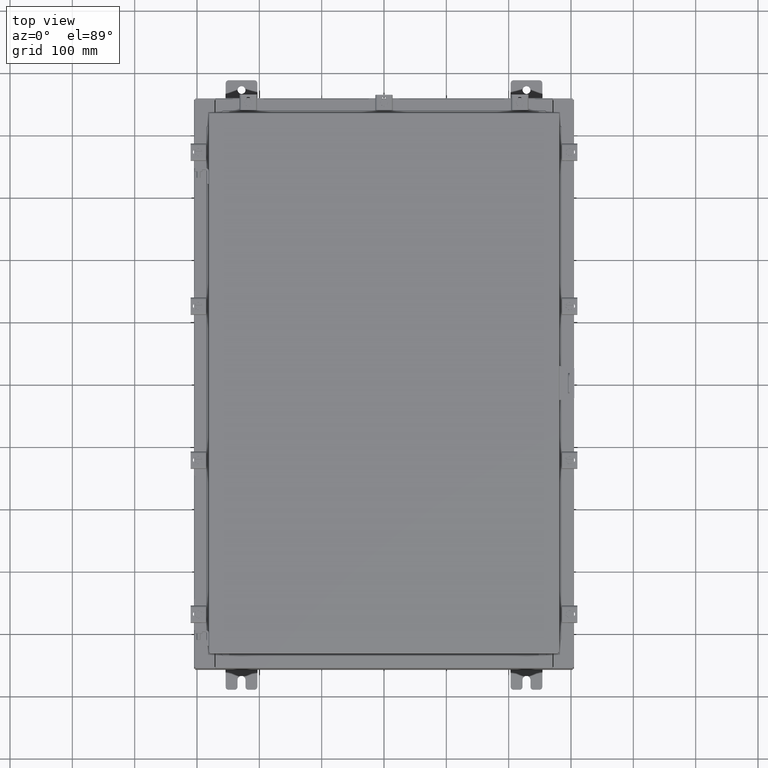
[diagram: clean part render]
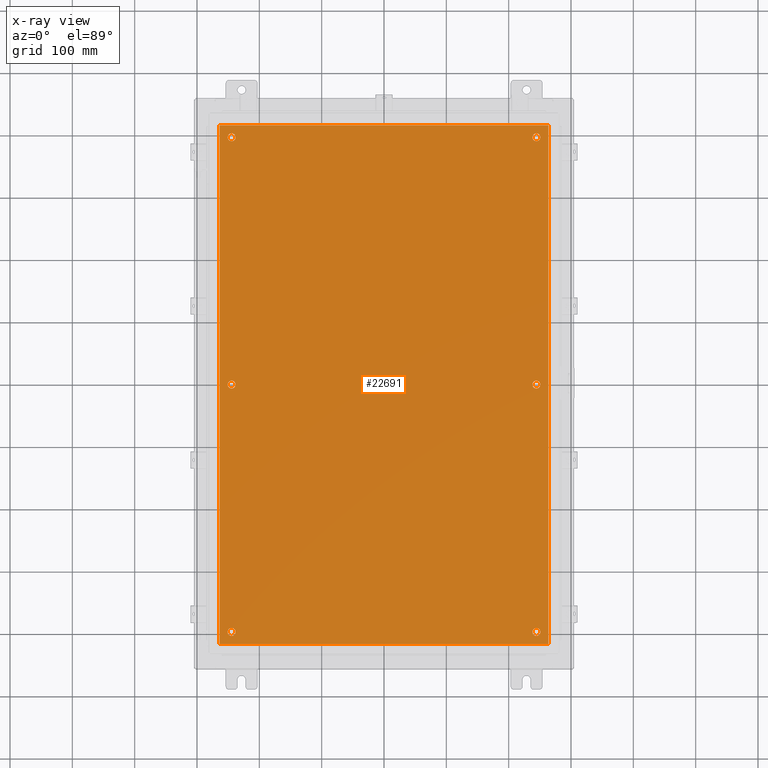
[diagram: x-ray — body ghosted, one internal face saturated and labeled with its STEP entity id]
A machine part, top view, then the same camera in x-ray: the body is ghosted and one INTERNAL B-rep face — a face not visible from any outside direction — is saturated and labeled: STEP entity #22691.
In plain terms, the highlighted planar face has unit normal (0, 0, -1).
Its self-contained STEP definition (entity closure, byte-faithful):
#20 = EDGE_CURVE ( 'NONE', #271, #23165, #4749, .T. ) ;
#33 = DIRECTION ( 'NONE',  ( -0.0000000000000000000, -0.0000000000000000000, 1.000000000000000000 ) ) ;
#271 = VERTEX_POINT ( 'NONE', #19202 ) ;
#463 = EDGE_CURVE ( 'NONE', #17640, #13622, #2226, .T. ) ;
#572 = CIRCLE ( 'NONE', #18532, 0.2499999999999998100 ) ;
#803 = DIRECTION ( 'NONE',  ( -1.000000000000000000, 0.0000000000000000000, 0.0000000000000000000 ) ) ;
#875 = CARTESIAN_POINT ( 'NONE',  ( -10.38300000000000100, 16.38300000000000300, -0.1039999999999987600 ) ) ;
#891 = EDGE_CURVE ( 'NONE', #1817, #5144, #11216, .T. ) ;
#1191 = CARTESIAN_POINT ( 'NONE',  ( 9.625000000000007100, 2.620299400612403500E-015, -0.1039999999999999800 ) ) ;
#1425 = CARTESIAN_POINT ( 'NONE',  ( 9.625000000000007100, 15.62500000000000200, -0.1039999999999999800 ) ) ;
#1574 = FACE_BOUND ( 'NONE', #18862, .T. ) ;
#1728 = AXIS2_PLACEMENT_3D ( 'NONE', #7045, #12481, #1733 ) ;
#1733 = DIRECTION ( 'NONE',  ( -1.000000000000000000, 0.0000000000000000000, -0.0000000000000000000 ) ) ;
#1817 = VERTEX_POINT ( 'NONE', #17637 ) ;
#1912 = EDGE_CURVE ( 'NONE', #21445, #21620, #17686, .T. ) ;
#2181 = CARTESIAN_POINT ( 'NONE',  ( 10.38300000000000100, -16.38299999999999600, -0.1040000000000009100 ) ) ;
#2226 = LINE ( 'NONE', #18496, #9001 ) ;
#2327 = ORIENTED_EDGE ( 'NONE', *, *, #20, .T. ) ;
#2512 = VECTOR ( 'NONE', #16404, 39.37007874015748100 ) ;
#2580 = ORIENTED_EDGE ( 'NONE', *, *, #10595, .T. ) ;
#2655 = VERTEX_POINT ( 'NONE', #6331 ) ;
#2677 = DIRECTION ( 'NONE',  ( 0.0000000000000000000, -1.000000000000000000, 0.0000000000000000000 ) ) ;
#3195 = DIRECTION ( 'NONE',  ( -1.000000000000000000, 0.0000000000000000000, 0.0000000000000000000 ) ) ;
#3205 = CARTESIAN_POINT ( 'NONE',  ( 9.375000000000007100, 15.62500000000000200, -0.1039999999999999800 ) ) ;
#3663 = CARTESIAN_POINT ( 'NONE',  ( 9.875000000000007100, 15.62500000000000200, -0.1039999999999999800 ) ) ;
#3785 = AXIS2_PLACEMENT_3D ( 'NONE', #10765, #33, #12586 ) ;
#4054 = AXIS2_PLACEMENT_3D ( 'NONE', #1191, #11805, #20254 ) ;
#4166 = CARTESIAN_POINT ( 'NONE',  ( 9.375000000000007100, -15.62500000000000200, -0.1039999999999999800 ) ) ;
#4286 = ORIENTED_EDGE ( 'NONE', *, *, #9161, .F. ) ;
#4425 = CIRCLE ( 'NONE', #7593, 0.2500000000000008900 ) ;
#4666 = CARTESIAN_POINT ( 'NONE',  ( -9.625000000000007100, 15.62500000000000200, -0.1039999999999999800 ) ) ;
#4741 = CIRCLE ( 'NONE', #14624, 0.2499999999999998100 ) ;
#4749 = CIRCLE ( 'NONE', #4054, 0.2499999999999998100 ) ;
#5037 = VERTEX_POINT ( 'NONE', #13588 ) ;
#5144 = VERTEX_POINT ( 'NONE', #11254 ) ;
#5707 = EDGE_LOOP ( 'NONE', ( #2580, #22155 ) ) ;
#6015 = ORIENTED_EDGE ( 'NONE', *, *, #20617, .T. ) ;
#6118 = CIRCLE ( 'NONE', #3785, 0.2500000000000008900 ) ;
#6331 = CARTESIAN_POINT ( 'NONE',  ( -9.375000000000007100, 15.62500000000000200, -0.1039999999999999800 ) ) ;
#6354 = CIRCLE ( 'NONE', #10318, 0.2499999999999998100 ) ;
#6429 = EDGE_CURVE ( 'NONE', #15853, #19058, #21410, .T. ) ;
#6465 = DIRECTION ( 'NONE',  ( -1.000000000000000000, 0.0000000000000000000, 0.0000000000000000000 ) ) ;
#6569 = EDGE_CURVE ( 'NONE', #18167, #22534, #9037, .T. ) ;
#6716 = LINE ( 'NONE', #19937, #2512 ) ;
#6756 = CARTESIAN_POINT ( 'NONE',  ( -9.625000000000007100, 15.62500000000000200, -0.1039999999999999800 ) ) ;
#6868 = FACE_BOUND ( 'NONE', #17388, .T. ) ;
#7045 = CARTESIAN_POINT ( 'NONE',  ( 0.0000000000000000000, 0.0000000000000000000, -0.1039999999999999800 ) ) ;
#7062 = VECTOR ( 'NONE', #23107, 39.37007874015748100 ) ;
#7231 = AXIS2_PLACEMENT_3D ( 'NONE', #19726, #8942, #21506 ) ;
#7253 = AXIS2_PLACEMENT_3D ( 'NONE', #22189, #22123, #21859 ) ;
#7356 = ORIENTED_EDGE ( 'NONE', *, *, #6569, .T. ) ;
#7465 = ORIENTED_EDGE ( 'NONE', *, *, #9794, .T. ) ;
#7504 = CIRCLE ( 'NONE', #10021, 0.2499999999999998100 ) ;
#7593 = AXIS2_PLACEMENT_3D ( 'NONE', #6756, #19356, #8581 ) ;
#7778 = CARTESIAN_POINT ( 'NONE',  ( 9.625000000000007100, 2.620299400612403500E-015, -0.1039999999999999800 ) ) ;
#7869 = EDGE_LOOP ( 'NONE', ( #11574, #7465 ) ) ;
#8229 = EDGE_CURVE ( 'NONE', #17662, #12204, #4741, .T. ) ;
#8250 = ORIENTED_EDGE ( 'NONE', *, *, #15387, .T. ) ;
#8504 = CARTESIAN_POINT ( 'NONE',  ( 9.625000000000007100, -15.62500000000000200, -0.1039999999999999800 ) ) ;
#8572 = DIRECTION ( 'NONE',  ( -1.000000000000000000, 0.0000000000000000000, 0.0000000000000000000 ) ) ;
#8581 = DIRECTION ( 'NONE',  ( -1.000000000000000000, 0.0000000000000000000, 0.0000000000000000000 ) ) ;
#8721 = DIRECTION ( 'NONE',  ( -0.0000000000000000000, -0.0000000000000000000, 1.000000000000000000 ) ) ;
#8789 = CARTESIAN_POINT ( 'NONE',  ( 9.625000000000007100, 15.62500000000000200, -0.1039999999999999800 ) ) ;
#8870 = PLANE ( 'NONE',  #1728 ) ;
#8942 = DIRECTION ( 'NONE',  ( -0.0000000000000000000, -0.0000000000000000000, 1.000000000000000000 ) ) ;
#9001 = VECTOR ( 'NONE', #18962, 39.37007874015748100 ) ;
#9037 = CIRCLE ( 'NONE', #22113, 0.2499999999999998100 ) ;
#9059 = AXIS2_PLACEMENT_3D ( 'NONE', #10085, #10858, #803 ) ;
#9161 = EDGE_CURVE ( 'NONE', #13622, #15853, #6716, .T. ) ;
#9597 = DIRECTION ( 'NONE',  ( -1.000000000000000000, 0.0000000000000000000, 0.0000000000000000000 ) ) ;
#9743 = DIRECTION ( 'NONE',  ( -0.0000000000000000000, -0.0000000000000000000, 1.000000000000000000 ) ) ;
#9794 = EDGE_CURVE ( 'NONE', #5144, #1817, #6118, .T. ) ;
#10021 = AXIS2_PLACEMENT_3D ( 'NONE', #8504, #21069, #10302 ) ;
#10085 = CARTESIAN_POINT ( 'NONE',  ( -9.625000000000005300, 2.628543122537473900E-016, -0.1039999999999999800 ) ) ;
#10302 = DIRECTION ( 'NONE',  ( -1.000000000000000000, 0.0000000000000000000, 0.0000000000000000000 ) ) ;
#10318 = AXIS2_PLACEMENT_3D ( 'NONE', #1425, #13992, #3195 ) ;
#10439 = CARTESIAN_POINT ( 'NONE',  ( 9.875000000000007100, -15.62500000000000200, -0.1039999999999999800 ) ) ;
#10519 = FACE_OUTER_BOUND ( 'NONE', #15010, .T. ) ;
#10595 = EDGE_CURVE ( 'NONE', #12204, #17662, #7504, .T. ) ;
#10625 = EDGE_CURVE ( 'NONE', #5037, #2655, #4425, .T. ) ;
#10765 = CARTESIAN_POINT ( 'NONE',  ( -9.625000000000005300, 2.628543122537473900E-016, -0.1039999999999999800 ) ) ;
#10858 = DIRECTION ( 'NONE',  ( -0.0000000000000000000, -0.0000000000000000000, 1.000000000000000000 ) ) ;
#11085 = FACE_BOUND ( 'NONE', #15807, .T. ) ;
#11200 = EDGE_CURVE ( 'NONE', #22534, #18167, #6354, .T. ) ;
#11216 = CIRCLE ( 'NONE', #9059, 0.2500000000000008900 ) ;
#11235 = CARTESIAN_POINT ( 'NONE',  ( -10.38300000000000100, -16.38299999999999600, -0.1040000000000009100 ) ) ;
#11254 = CARTESIAN_POINT ( 'NONE',  ( -9.875000000000005300, 2.934704822324310800E-016, -0.1039999999999999800 ) ) ;
#11255 = CARTESIAN_POINT ( 'NONE',  ( -9.875000000000007100, -15.62500000000000200, -0.1039999999999999800 ) ) ;
#11574 = ORIENTED_EDGE ( 'NONE', *, *, #891, .T. ) ;
#11805 = DIRECTION ( 'NONE',  ( -0.0000000000000000000, -0.0000000000000000000, 1.000000000000000000 ) ) ;
#11922 = CARTESIAN_POINT ( 'NONE',  ( 9.875000000000007100, 2.620299400612403500E-015, -0.1039999999999999800 ) ) ;
#12204 = VERTEX_POINT ( 'NONE', #10439 ) ;
#12481 = DIRECTION ( 'NONE',  ( 0.0000000000000000000, 0.0000000000000000000, -1.000000000000000000 ) ) ;
#12586 = DIRECTION ( 'NONE',  ( -1.000000000000000000, 0.0000000000000000000, 0.0000000000000000000 ) ) ;
#12839 = CIRCLE ( 'NONE', #7231, 0.2500000000000008900 ) ;
#13255 = CIRCLE ( 'NONE', #21833, 0.2500000000000008900 ) ;
#13386 = ORIENTED_EDGE ( 'NONE', *, *, #463, .F. ) ;
#13432 = LINE ( 'NONE', #875, #22962 ) ;
#13588 = CARTESIAN_POINT ( 'NONE',  ( -9.875000000000007100, 15.62500000000000200, -0.1039999999999999800 ) ) ;
#13622 = VERTEX_POINT ( 'NONE', #2181 ) ;
#13864 = ORIENTED_EDGE ( 'NONE', *, *, #6429, .F. ) ;
#13992 = DIRECTION ( 'NONE',  ( -0.0000000000000000000, -0.0000000000000000000, 1.000000000000000000 ) ) ;
#14375 = ORIENTED_EDGE ( 'NONE', *, *, #1912, .T. ) ;
#14624 = AXIS2_PLACEMENT_3D ( 'NONE', #20528, #9743, #22311 ) ;
#14639 = ORIENTED_EDGE ( 'NONE', *, *, #14851, .T. ) ;
#14851 = EDGE_CURVE ( 'NONE', #2655, #5037, #13255, .T. ) ;
#15010 = EDGE_LOOP ( 'NONE', ( #13386, #15011, #13864, #4286 ) ) ;
#15011 = ORIENTED_EDGE ( 'NONE', *, *, #20584, .F. ) ;
#15087 = CARTESIAN_POINT ( 'NONE',  ( -10.38300000000000100, 16.38300000000000300, -0.1039999999999987600 ) ) ;
#15338 = FACE_BOUND ( 'NONE', #5707, .T. ) ;
#15380 = CARTESIAN_POINT ( 'NONE',  ( -9.375000000000007100, -15.62500000000000200, -0.1039999999999999800 ) ) ;
#15387 = EDGE_CURVE ( 'NONE', #23165, #271, #572, .T. ) ;
#15807 = EDGE_LOOP ( 'NONE', ( #7356, #22642 ) ) ;
#15853 = VERTEX_POINT ( 'NONE', #18072 ) ;
#15903 = FACE_BOUND ( 'NONE', #7869, .T. ) ;
#16404 = DIRECTION ( 'NONE',  ( 0.0000000000000000000, 1.000000000000000000, 0.0000000000000000000 ) ) ;
#17259 = DIRECTION ( 'NONE',  ( -0.0000000000000000000, -0.0000000000000000000, 1.000000000000000000 ) ) ;
#17388 = EDGE_LOOP ( 'NONE', ( #8250, #2327 ) ) ;
#17637 = CARTESIAN_POINT ( 'NONE',  ( -9.375000000000005300, 2.628543122537473900E-016, -0.1039999999999999800 ) ) ;
#17640 = VERTEX_POINT ( 'NONE', #11235 ) ;
#17662 = VERTEX_POINT ( 'NONE', #4166 ) ;
#17686 = CIRCLE ( 'NONE', #7253, 0.2500000000000008900 ) ;
#18072 = CARTESIAN_POINT ( 'NONE',  ( 10.38300000000000100, 16.38300000000000300, -0.1040000000000009100 ) ) ;
#18167 = VERTEX_POINT ( 'NONE', #3663 ) ;
#18294 = EDGE_LOOP ( 'NONE', ( #6015, #14375 ) ) ;
#18496 = CARTESIAN_POINT ( 'NONE',  ( -10.50000000000000200, -16.38299999999999600, -0.1040000000000009100 ) ) ;
#18532 = AXIS2_PLACEMENT_3D ( 'NONE', #7778, #20384, #9597 ) ;
#18862 = EDGE_LOOP ( 'NONE', ( #14639, #20672 ) ) ;
#18962 = DIRECTION ( 'NONE',  ( 1.000000000000000000, -0.0000000000000000000, -0.0000000000000000000 ) ) ;
#19058 = VERTEX_POINT ( 'NONE', #15087 ) ;
#19202 = CARTESIAN_POINT ( 'NONE',  ( 9.375000000000007100, 2.650915570591087300E-015, -0.1039999999999999800 ) ) ;
#19356 = DIRECTION ( 'NONE',  ( -0.0000000000000000000, -0.0000000000000000000, 1.000000000000000000 ) ) ;
#19726 = CARTESIAN_POINT ( 'NONE',  ( -9.625000000000007100, -15.62500000000000200, -0.1039999999999999800 ) ) ;
#19937 = CARTESIAN_POINT ( 'NONE',  ( 10.38300000000000100, -16.38299999999999600, -0.1040000000000009100 ) ) ;
#20105 = FACE_BOUND ( 'NONE', #18294, .T. ) ;
#20254 = DIRECTION ( 'NONE',  ( -1.000000000000000000, 0.0000000000000000000, 0.0000000000000000000 ) ) ;
#20384 = DIRECTION ( 'NONE',  ( -0.0000000000000000000, -0.0000000000000000000, 1.000000000000000000 ) ) ;
#20528 = CARTESIAN_POINT ( 'NONE',  ( 9.625000000000007100, -15.62500000000000200, -0.1039999999999999800 ) ) ;
#20584 = EDGE_CURVE ( 'NONE', #19058, #17640, #13432, .T. ) ;
#20617 = EDGE_CURVE ( 'NONE', #21620, #21445, #12839, .T. ) ;
#20672 = ORIENTED_EDGE ( 'NONE', *, *, #10625, .T. ) ;
#21069 = DIRECTION ( 'NONE',  ( -0.0000000000000000000, -0.0000000000000000000, 1.000000000000000000 ) ) ;
#21410 = LINE ( 'NONE', #22801, #7062 ) ;
#21445 = VERTEX_POINT ( 'NONE', #11255 ) ;
#21506 = DIRECTION ( 'NONE',  ( -1.000000000000000000, 0.0000000000000000000, 0.0000000000000000000 ) ) ;
#21620 = VERTEX_POINT ( 'NONE', #15380 ) ;
#21833 = AXIS2_PLACEMENT_3D ( 'NONE', #4666, #17259, #6465 ) ;
#21859 = DIRECTION ( 'NONE',  ( -1.000000000000000000, 0.0000000000000000000, 0.0000000000000000000 ) ) ;
#22113 = AXIS2_PLACEMENT_3D ( 'NONE', #8789, #8721, #8572 ) ;
#22123 = DIRECTION ( 'NONE',  ( -0.0000000000000000000, -0.0000000000000000000, 1.000000000000000000 ) ) ;
#22155 = ORIENTED_EDGE ( 'NONE', *, *, #8229, .T. ) ;
#22189 = CARTESIAN_POINT ( 'NONE',  ( -9.625000000000007100, -15.62500000000000200, -0.1039999999999999800 ) ) ;
#22311 = DIRECTION ( 'NONE',  ( -1.000000000000000000, 0.0000000000000000000, 0.0000000000000000000 ) ) ;
#22534 = VERTEX_POINT ( 'NONE', #3205 ) ;
#22642 = ORIENTED_EDGE ( 'NONE', *, *, #11200, .T. ) ;
#22691 = ADVANCED_FACE ( 'NONE', ( #6868, #15903, #20105, #15338, #11085, #1574, #10519 ), #8870, .T. ) ;
#22801 = CARTESIAN_POINT ( 'NONE',  ( 10.50000000000000400, 16.38299999999999900, -0.1040000000000009100 ) ) ;
#22962 = VECTOR ( 'NONE', #2677, 39.37007874015748100 ) ;
#23107 = DIRECTION ( 'NONE',  ( -1.000000000000000000, -0.0000000000000000000, -0.0000000000000000000 ) ) ;
#23165 = VERTEX_POINT ( 'NONE', #11922 ) ;